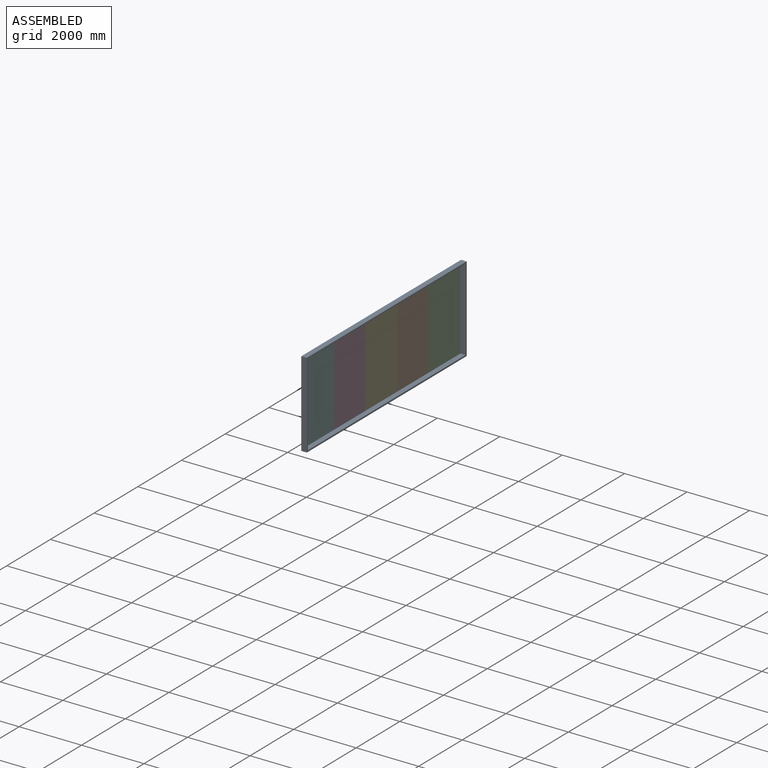
[diagram: assembled view]
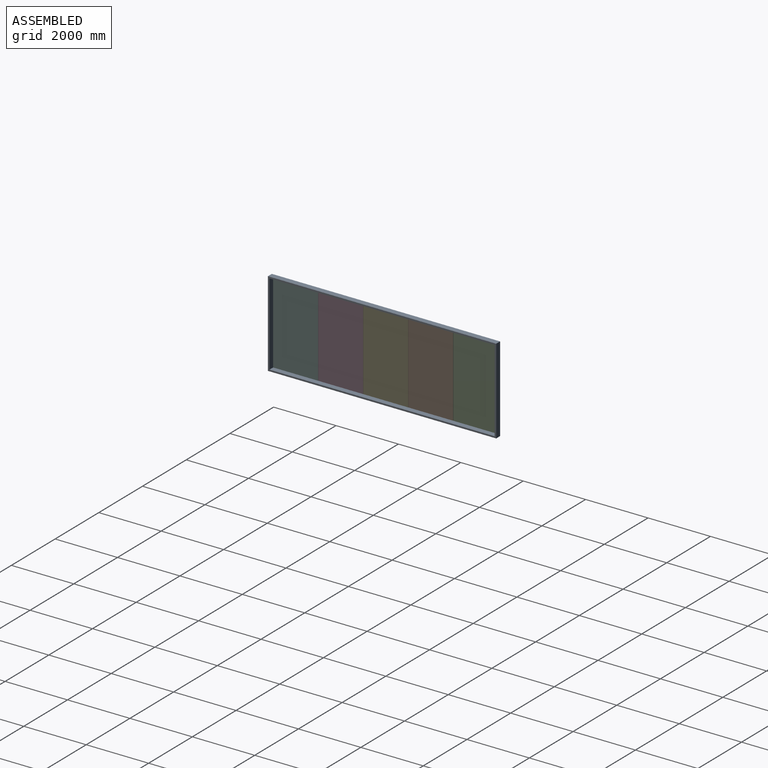
[diagram: assembled view, second angle]
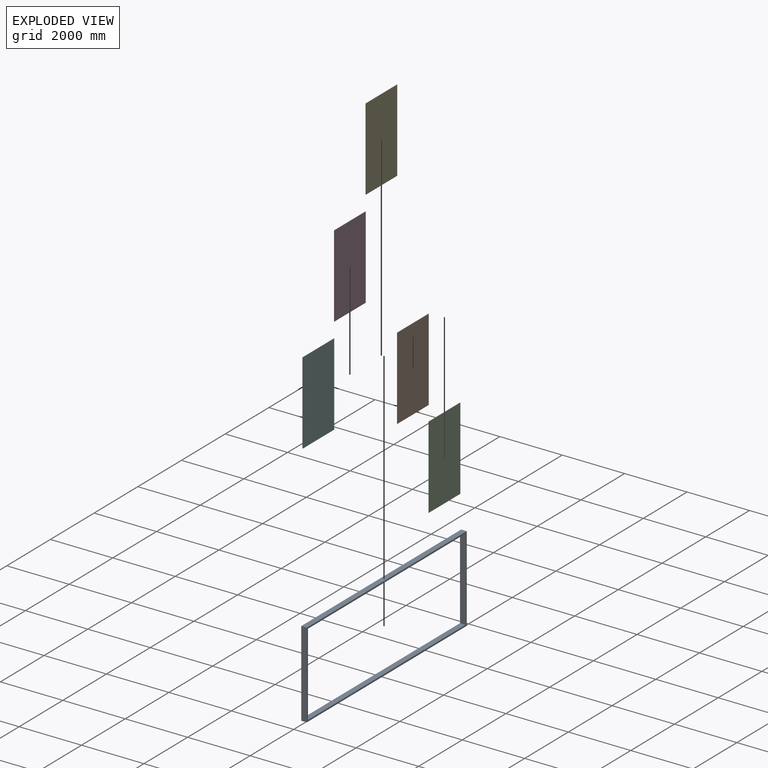
[diagram: exploded view]
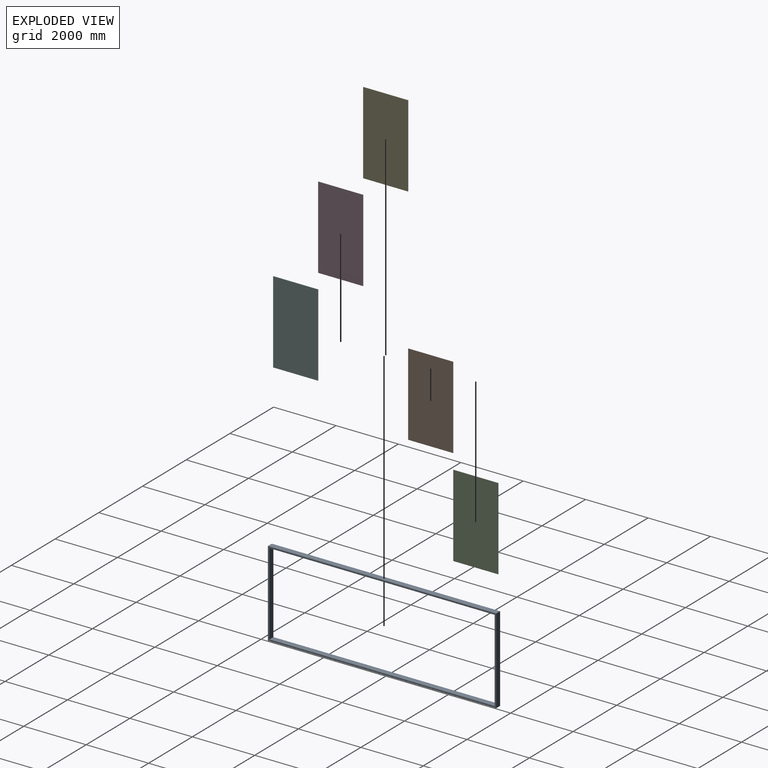
[diagram: exploded view, second angle]
ASSEMBLY  parts=6 mates=5
PART A: 10 faces, bbox 177.8x7315.2x2743.2 mm
  f0: plane 7315.2x177.8mm, normal (0,0,-1), area 1300642.6mm2, adj f1,f3,f4,f5
  f1: plane 2743.2x177.8mm, normal (0,1,0), area 487741mm2, adj f0,f2,f4,f5
  f2: plane 7315.2x177.8mm, normal (0,0,1), area 1300642.6mm2, adj f1,f3,f4,f5
  f3: plane 2743.2x177.8mm, normal (0,-1,0), area 487741mm2, adj f0,f2,f4,f5
  f4: plane 7315.2x2743.2mm, normal (1,0,0), area 1011610.9mm2, adj f0,f1,f2,f3,f6,f7,f8,f9
  f5: plane 7315.2x2743.2mm, normal (-1,0,0), area 1011610.9mm2, adj f0,f1,f2,f3,f6,f7,f8,f9
  f6: plane 7213.6x177.8mm, normal (0,0,-1), area 1282578.1mm2, adj f4,f5,f7,f9
  f7: plane 2641.6x177.8mm, normal (0,1,0), area 469676.5mm2, adj f4,f5,f6,f8
  f8: plane 7213.6x177.8mm, normal (0,0,1), area 1282578.1mm2, adj f4,f5,f7,f9
  f9: plane 2641.6x177.8mm, normal (0,-1,0), area 469676.5mm2, adj f4,f5,f6,f8
PART B: 6 faces, bbox 12.7x1437.6x2641.6 mm
  f0: plane 2641.6x12.7mm, normal (0,1,0), area 33548.3mm2, adj f1,f3,f4,f5
  f1: plane 1437.64x12.7mm, normal (0,0,1), area 18258mm2, adj f0,f2,f4,f5
  f2: plane 2641.6x12.7mm, normal (0,-1,0), area 33548.3mm2, adj f1,f3,f4,f5
  f3: plane 1437.64x12.7mm, normal (0,0,-1), area 18258mm2, adj f0,f2,f4,f5
  f4: plane 2641.6x1437.64mm, normal (1,0,0), area 3797669.8mm2, adj f0,f1,f2,f3
  f5: plane 2641.6x1437.64mm, normal (-1,0,0), area 3797669.8mm2, adj f0,f1,f2,f3
PART C: 6 faces, bbox 12.7x1437.6x2641.6 mm
  f0: plane 2641.6x12.7mm, normal (0,1,0), area 33548.3mm2, adj f1,f3,f4,f5
  f1: plane 1437.64x12.7mm, normal (0,0,1), area 18258mm2, adj f0,f2,f4,f5
  f2: plane 2641.6x12.7mm, normal (0,-1,0), area 33548.3mm2, adj f1,f3,f4,f5
  f3: plane 1437.64x12.7mm, normal (0,0,-1), area 18258mm2, adj f0,f2,f4,f5
  f4: plane 2641.6x1437.64mm, normal (1,0,0), area 3797669.8mm2, adj f0,f1,f2,f3
  f5: plane 2641.6x1437.64mm, normal (-1,0,0), area 3797669.8mm2, adj f0,f1,f2,f3
PART D: 6 faces, bbox 12.7x1437.6x2641.6 mm
  f0: plane 2641.6x12.7mm, normal (0,1,0), area 33548.3mm2, adj f1,f3,f4,f5
  f1: plane 1437.64x12.7mm, normal (0,0,1), area 18258mm2, adj f0,f2,f4,f5
  f2: plane 2641.6x12.7mm, normal (0,-1,0), area 33548.3mm2, adj f1,f3,f4,f5
  f3: plane 1437.64x12.7mm, normal (0,0,-1), area 18258mm2, adj f0,f2,f4,f5
  f4: plane 2641.6x1437.64mm, normal (1,0,0), area 3797669.8mm2, adj f0,f1,f2,f3
  f5: plane 2641.6x1437.64mm, normal (-1,0,0), area 3797669.8mm2, adj f0,f1,f2,f3
PART E: 6 faces, bbox 12.7x1437.6x2641.6 mm
  f0: plane 2641.6x12.7mm, normal (0,1,0), area 33548.3mm2, adj f1,f3,f4,f5
  f1: plane 1437.64x12.7mm, normal (0,0,1), area 18258mm2, adj f0,f2,f4,f5
  f2: plane 2641.6x12.7mm, normal (0,-1,0), area 33548.3mm2, adj f1,f3,f4,f5
  f3: plane 1437.64x12.7mm, normal (0,0,-1), area 18258mm2, adj f0,f2,f4,f5
  f4: plane 2641.6x1437.64mm, normal (1,0,0), area 3797669.8mm2, adj f0,f1,f2,f3
  f5: plane 2641.6x1437.64mm, normal (-1,0,0), area 3797669.8mm2, adj f0,f1,f2,f3
PART F: 6 faces, bbox 12.7x1437.6x2641.6 mm
  f0: plane 2641.6x12.7mm, normal (0,1,0), area 33548.3mm2, adj f1,f3,f4,f5
  f1: plane 1437.64x12.7mm, normal (0,0,1), area 18258mm2, adj f0,f2,f4,f5
  f2: plane 2641.6x12.7mm, normal (0,-1,0), area 33548.3mm2, adj f1,f3,f4,f5
  f3: plane 1437.64x12.7mm, normal (0,0,-1), area 18258mm2, adj f0,f2,f4,f5
  f4: plane 2641.6x1437.64mm, normal (1,0,0), area 3797669.8mm2, adj f0,f1,f2,f3
  f5: plane 2641.6x1437.64mm, normal (-1,0,0), area 3797669.8mm2, adj f0,f1,f2,f3
PLACE A t=(0,5.08,0)mm
PLACE B at identity
PLACE C at identity
PLACE D at identity
PLACE E at identity
PLACE F at identity fixed
MATE fastened D.f3 <-> E.f3  axis (0,0,1) through (0,-2159,50.8)mm
MATE fastened F.f3 <-> D.f3  axis (0,0,1) through (0,-3601.72,50.8)mm
MATE fastened F.f3 <-> A.f8  axis (0,0,1) through (0,-3601.72,50.8)mm
MATE fastened B.f3 <-> C.f3  axis (0,0,1) through (0,726.44,50.8)mm
MATE fastened E.f3 <-> B.f3  axis (0,0,1) through (0,-716.28,50.8)mm
